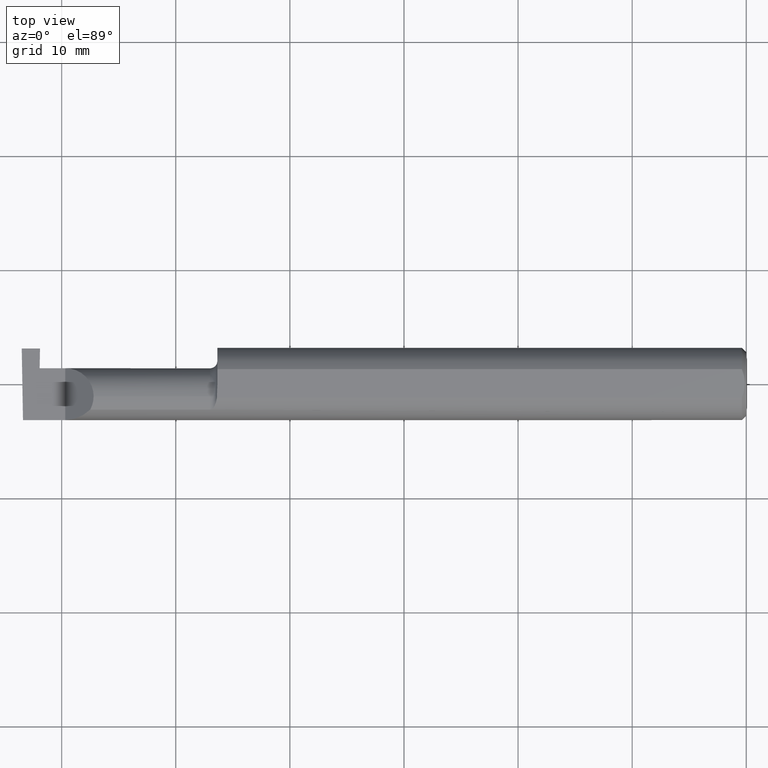
[diagram: clean part render]
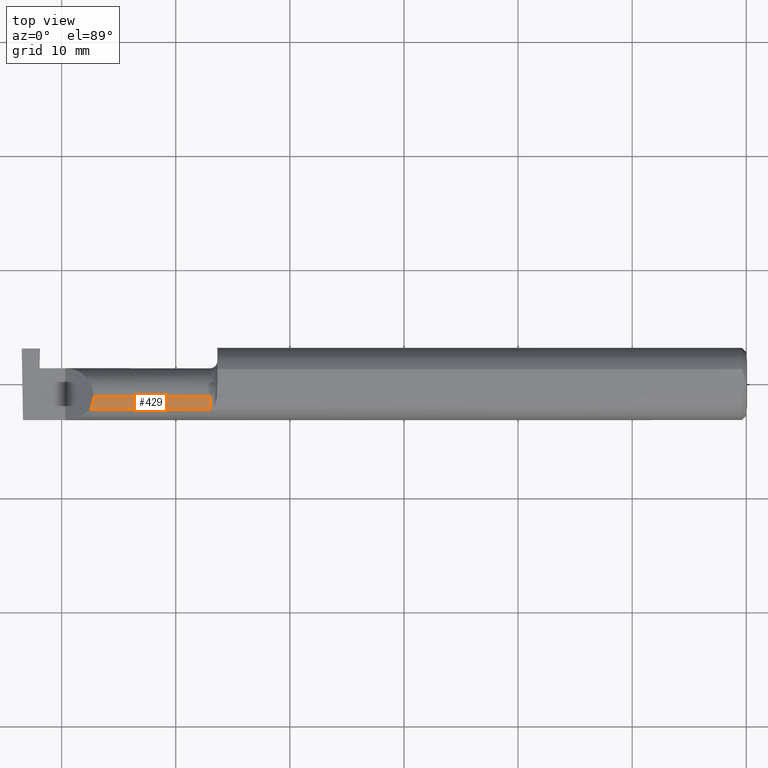
[diagram: same view with one face highlighted and labeled with its STEP entity id]
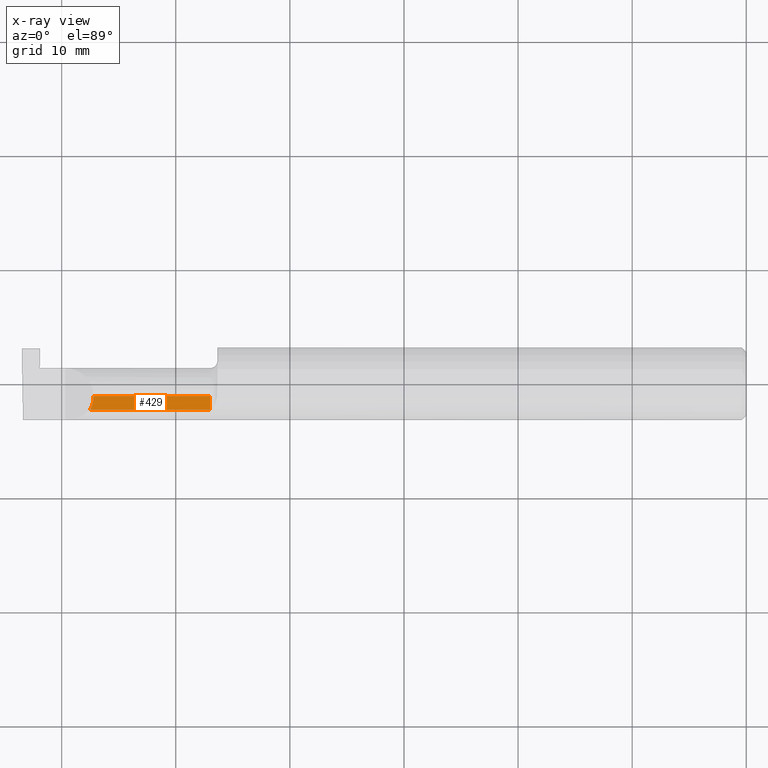
[diagram: x-ray of the same camera — body ghosted, the highlighted face saturated]
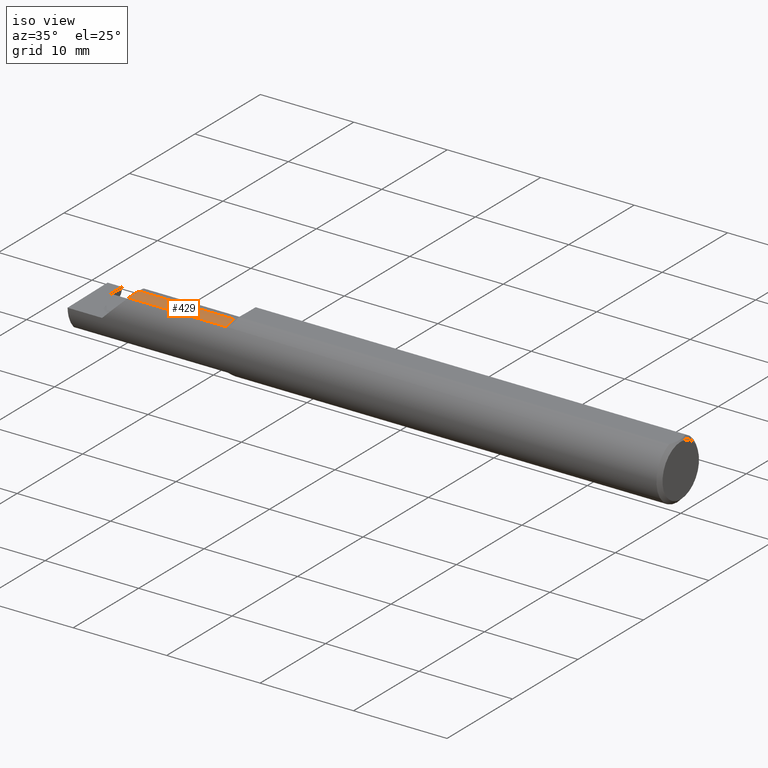
[diagram: same view with one face highlighted and labeled with its STEP entity id]
A machine part, top view. The second image highlights one B-rep face of the part: STEP entity #429.
The next image is the same camera in x-ray: the body ghosted, the highlighted face saturated — about 0% of this face is hidden behind the body in this view.
A second angle (iso view) of the same face is appended — the face is thin or edge-on in the first view.
In plain terms, the highlighted cylindrical surface (edge-blend (fillet) strip) has radius 2.4892 mm, axis along (1, -0, -0).
Its self-contained STEP definition (entity closure, byte-faithful):
#1 = VECTOR ( 'NONE', #62, 39.37007874015748143 ) ;
#56 = CARTESIAN_POINT ( 'NONE',  ( -1.849999999999999867, -0.04385000000000001397, 0.09800000000000000377 ) ) ;
#62 = DIRECTION ( 'NONE',  ( 1.000000000000000000, -0.000000000000000000, -0.000000000000000000 ) ) ;
#69 = EDGE_CURVE ( 'NONE', #671, #773, #300, .T. ) ;
#83 = CYLINDRICAL_SURFACE ( 'NONE', #767, 0.09800000000000000377 ) ;
#94 = VECTOR ( 'NONE', #158, 39.37007874015748143 ) ;
#141 = CARTESIAN_POINT ( 'NONE',  ( -1.824999999999999956, -0.04385000000000001397, 0.09800000000000000377 ) ) ;
#158 = DIRECTION ( 'NONE',  ( -1.000000000000000000, 0.000000000000000000, 0.000000000000000000 ) ) ;
#169 = CARTESIAN_POINT ( 'NONE',  ( -1.824999999999999956, -0.04385000000000001397, 0.000000000000000000 ) ) ;
#177 = AXIS2_PLACEMENT_3D ( 'NONE', #412, #347, #452 ) ;
#202 = VERTEX_POINT ( 'NONE', #56 ) ;
#232 = CARTESIAN_POINT ( 'NONE',  ( -2.252000000000000668, -0.06008937020638503712, 0.09799999999999998990 ) ) ;
#246 = ORIENTED_EDGE ( 'NONE', *, *, #656, .T. ) ;
#248 = EDGE_CURVE ( 'NONE', #773, #202, #552, .T. ) ;
#300 =( BOUNDED_CURVE ( )  B_SPLINE_CURVE ( 3, ( #763, #524, #232, #478 ),
 .UNSPECIFIED., .F., .F. ) 
 B_SPLINE_CURVE_WITH_KNOTS ( ( 4, 4 ),
 ( 5.791092865617133434, 6.283185307179586232 ),
 .UNSPECIFIED. ) 
 CURVE ( )  GEOMETRIC_REPRESENTATION_ITEM ( )  RATIONAL_B_SPLINE_CURVE ( ( 1.000000000000000000, 0.9799220177372784946, 0.9799220177372784946, 1.000000000000000000 ) ) 
 REPRESENTATION_ITEM ( '' )  );
#339 = ORIENTED_EDGE ( 'NONE', *, *, #788, .F. ) ;
#347 = DIRECTION ( 'NONE',  ( -1.000000000000000000, 0.000000000000000000, 0.000000000000000000 ) ) ;
#388 = ORIENTED_EDGE ( 'NONE', *, *, #248, .F. ) ;
#397 = CARTESIAN_POINT ( 'NONE',  ( -2.252000000000000668, -0.04385000000000001397, 0.09800000000000000377 ) ) ;
#409 = EDGE_LOOP ( 'NONE', ( #388, #487, #339, #246 ) ) ;
#412 = CARTESIAN_POINT ( 'NONE',  ( -1.849999999999999867, -0.04385000000000001397, 0.000000000000000000 ) ) ;
#429 = ADVANCED_FACE ( 'NONE', ( #633 ), #83, .T. ) ;
#452 = DIRECTION ( 'NONE',  ( 0.000000000000000000, 0.000000000000000000, 1.000000000000000000 ) ) ;
#467 = CARTESIAN_POINT ( 'NONE',  ( -1.849999999999999867, -0.09015216647662482874, 0.08637192471845768493 ) ) ;
#478 = CARTESIAN_POINT ( 'NONE',  ( -2.252000000000000668, -0.04385000000000001397, 0.09800000000000000377 ) ) ;
#487 = ORIENTED_EDGE ( 'NONE', *, *, #69, .F. ) ;
#524 = CARTESIAN_POINT ( 'NONE',  ( -2.255955442396118560, -0.07583965973232772995, 0.09404455760388213958 ) ) ;
#529 = VERTEX_POINT ( 'NONE', #467 ) ;
#552 = LINE ( 'NONE', #141, #1 ) ;
#633 = FACE_OUTER_BOUND ( 'NONE', #409, .T. ) ;
#640 = LINE ( 'NONE', #759, #94 ) ;
#647 = DIRECTION ( 'NONE',  ( 1.000000000000000000, -0.000000000000000000, -0.000000000000000000 ) ) ;
#656 = EDGE_CURVE ( 'NONE', #529, #202, #746, .T. ) ;
#671 = VERTEX_POINT ( 'NONE', #744 ) ;
#686 = DIRECTION ( 'NONE',  ( 0.000000000000000000, 0.000000000000000000, 1.000000000000000000 ) ) ;
#744 = CARTESIAN_POINT ( 'NONE',  ( -2.263628075281542529, -0.09015216647662421812, 0.08637192471845822617 ) ) ;
#746 = CIRCLE ( 'NONE', #177, 0.09800000000000000377 ) ;
#759 = CARTESIAN_POINT ( 'NONE',  ( -2.143499999999999961, -0.09015216647662482874, 0.08637192471845768493 ) ) ;
#763 = CARTESIAN_POINT ( 'NONE',  ( -2.263628075281542529, -0.09015216647662421812, 0.08637192471845822617 ) ) ;
#767 = AXIS2_PLACEMENT_3D ( 'NONE', #169, #647, #686 ) ;
#773 = VERTEX_POINT ( 'NONE', #397 ) ;
#788 = EDGE_CURVE ( 'NONE', #529, #671, #640, .T. ) ;